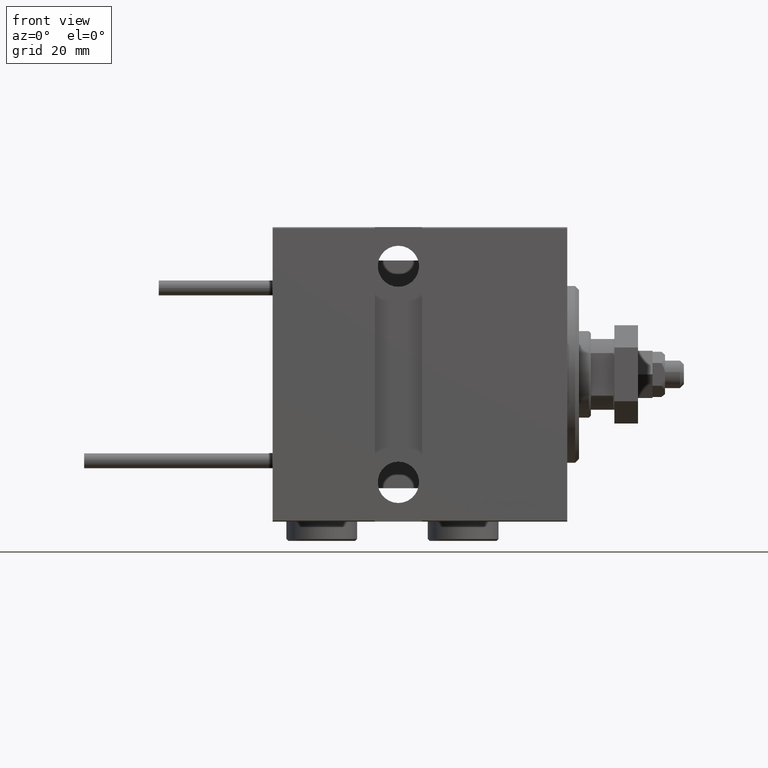
[diagram: clean part render]
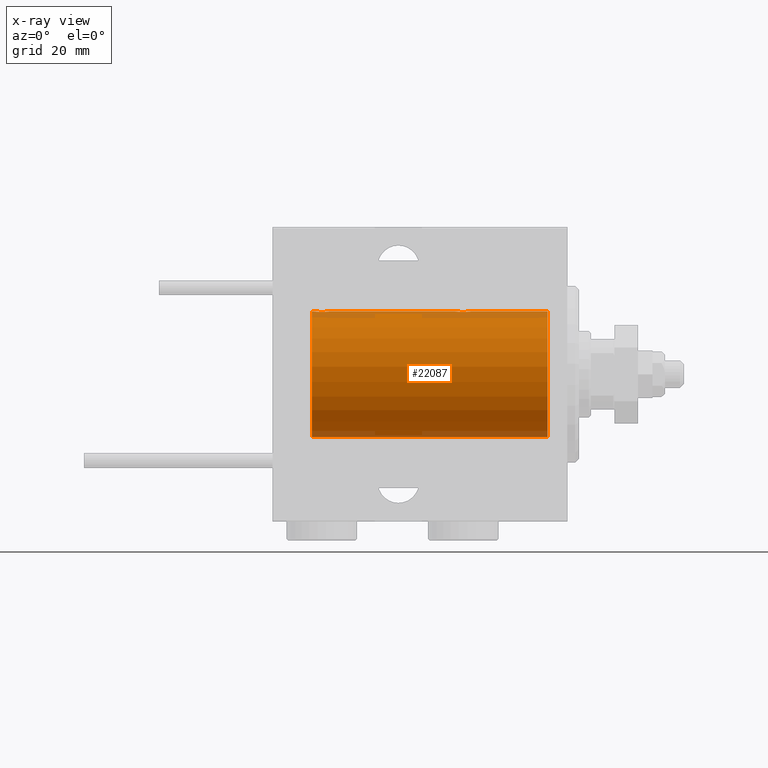
[diagram: x-ray — body ghosted, one internal face saturated and labeled with its STEP entity id]
A machine part, front view, then the same camera in x-ray: the body is ghosted and one INTERNAL B-rep face — a face not visible from any outside direction — is saturated and labeled: STEP entity #22087.
In plain terms, the highlighted cylindrical surface (partial cylindrical patch) has radius 16 mm, axis along (1, 0, -0).
Its self-contained STEP definition (entity closure, byte-faithful):
#285 = CARTESIAN_POINT ( 'NONE',  ( 64.23568098498259360, 1.002241074716276881, 15.96895041604535770 ) ) ;
#1955 = CARTESIAN_POINT ( 'NONE',  ( 65.00000000000000000, 0.000000000000000000, 16.00000000000000000 ) ) ;
#2053 = CARTESIAN_POINT ( 'NONE',  ( 27.02531756459403667, 1.947280337074160927, 15.88137861827786779 ) ) ;
#2315 = CARTESIAN_POINT ( 'NONE',  ( 25.49688752964961225, 1.735145127817741439, 15.90580292899658410 ) ) ;
#2574 = CARTESIAN_POINT ( 'NONE',  ( 24.51309075167874596, 0.2632563459770819736, 15.99834873924246459 ) ) ;
#3297 = FACE_OUTER_BOUND ( 'NONE', #6822, .T. ) ;
#3790 = CARTESIAN_POINT ( 'NONE',  ( 65.00000000000000000, 0.000000000000000000, 16.00000000000000000 ) ) ;
#3947 = EDGE_CURVE ( 'NONE', #47126, #34928, #13821, .T. ) ;
#4223 = ORIENTED_EDGE ( 'NONE', *, *, #9839, .T. ) ;
#4648 = CARTESIAN_POINT ( 'NONE',  ( 61.49688752964961935, 1.735145127817733002, 15.90580292899658410 ) ) ;
#5778 = DIRECTION ( 'NONE',  ( 0.000000000000000000, 0.000000000000000000, 1.000000000000000000 ) ) ;
#6048 = B_SPLINE_CURVE_WITH_KNOTS ( 'NONE', 3,
 ( #9318, #29362, #33734, #41466, #36863, #45331, #25754, #45081, #32755, #21900, #21393, #2053, #37096, #37606, #44835, #25260, #17772, #28863, #2315, #49447, #25005, #9566, #14172, #29876, #13164, #33494, #48697, #2574, #21142, #13415 ),
 .UNSPECIFIED., .F., .F.,
 ( 4, 2, 2, 2, 2, 2, 2, 2, 2, 2, 2, 2, 2, 2, 4 ),
 ( 1.745049934674283425E-18, 0.0003911894522871204737, 0.0007823789045742392126, 0.001173568356861357789, 0.001564757809148476691, 0.002347136713722706037, 0.003129515618296936034, 0.003520705070584051466, 0.003911894522871166464, 0.004303083975158282330, 0.004694273427445396461, 0.005085462879732512327, 0.005476652332019627326, 0.005867841784306743191, 0.006259031236593858190 ),
 .UNSPECIFIED. ) ;
#6822 = EDGE_LOOP ( 'NONE', ( #38570, #12224, #12279, #20953, #39590, #38373, #4223, #36091 ) ) ;
#7822 = EDGE_CURVE ( 'NONE', #23880, #19042, #34996, .T. ) ;
#8268 = CARTESIAN_POINT ( 'NONE',  ( 63.50659181559576183, 1.747750603376297951, 15.90457341008072056 ) ) ;
#8773 = CARTESIAN_POINT ( 'NONE',  ( 60.56430947073870641, 0.5198215460038694280, 15.99206840425679310 ) ) ;
#9294 = CARTESIAN_POINT ( 'NONE',  ( 65.00000000000000000, 0.000000000000000000, 16.00000000000000000 ) ) ;
#9318 = CARTESIAN_POINT ( 'NONE',  ( 28.49999999999999645, -1.207828523974853969E-15, 16.00000000000000000 ) ) ;
#9566 = CARTESIAN_POINT ( 'NONE',  ( 24.99262839687570903, 1.321075116345881595, 15.94564302722883298 ) ) ;
#9839 = EDGE_CURVE ( 'NONE', #45363, #23880, #23117, .T. ) ;
#10506 = CARTESIAN_POINT ( 'NONE',  ( 24.50000000000000000, -2.739635037742051899E-23, 16.00000000000000000 ) ) ;
#10766 = VERTEX_POINT ( 'NONE', #20648 ) ;
#10826 = EDGE_CURVE ( 'NONE', #26579, #45363, #6048, .T. ) ;
#11182 = AXIS2_PLACEMENT_3D ( 'NONE', #33039, #28907, #49490 ) ;
#12135 = CARTESIAN_POINT ( 'NONE',  ( 64.29713414748218270, 0.8874076679346717400, 15.97583181162460697 ) ) ;
#12224 = ORIENTED_EDGE ( 'NONE', *, *, #29689, .F. ) ;
#12279 = ORIENTED_EDGE ( 'NONE', *, *, #3947, .T. ) ;
#12635 = CARTESIAN_POINT ( 'NONE',  ( 61.28032342557722245, 1.590393755195991909, 15.92092783521423272 ) ) ;
#13164 = CARTESIAN_POINT ( 'NONE',  ( 24.70250071394960045, 0.8866640484200088990, 15.97587307151817448 ) ) ;
#13415 = CARTESIAN_POINT ( 'NONE',  ( 24.50000000000000000, -2.739635037742051899E-23, 16.00000000000000000 ) ) ;
#13460 = CARTESIAN_POINT ( 'NONE',  ( 65.00000000000000000, 1.959434878635765131E-15, -16.00000000000000000 ) ) ;
#13620 = AXIS2_PLACEMENT_3D ( 'NONE', #37807, #49387, #38327 ) ;
#13821 = LINE ( 'NONE', #1955, #27048 ) ;
#14172 = CARTESIAN_POINT ( 'NONE',  ( 24.90998471899876066, 1.220169175415113827, 15.95377581882983442 ) ) ;
#15985 = CARTESIAN_POINT ( 'NONE',  ( 62.37014691649500264, 2.000047931387129552, 15.87450182760079898 ) ) ;
#16251 = CARTESIAN_POINT ( 'NONE',  ( 64.48700524008410184, 0.2623312429553320002, 15.99836091803360105 ) ) ;
#17594 = EDGE_CURVE ( 'NONE', #34928, #10766, #31781, .T. ) ;
#17772 = CARTESIAN_POINT ( 'NONE',  ( 25.85613031966986952, 1.898058445420883311, 15.88709929148890510 ) ) ;
#18324 = CARTESIAN_POINT ( 'NONE',  ( 65.00000000000000000, 1.959434878635765131E-15, -16.00000000000000000 ) ) ;
#18758 = VERTEX_POINT ( 'NONE', #13460 ) ;
#18837 = LINE ( 'NONE', #18324, #40602 ) ;
#19042 = VERTEX_POINT ( 'NONE', #46047 ) ;
#19508 = DIRECTION ( 'NONE',  ( -1.000000000000000000, -0.000000000000000000, -0.000000000000000000 ) ) ;
#19614 = CARTESIAN_POINT ( 'NONE',  ( 60.50000000000001421, 0.1305944228192293111, 16.00000000000000000 ) ) ;
#20113 = CARTESIAN_POINT ( 'NONE',  ( 61.61382242942730159, 1.797743958659246966, 15.89876304682111652 ) ) ;
#20648 = CARTESIAN_POINT ( 'NONE',  ( 60.50000000000000711, -2.739595594696790848E-23, 16.00000000000000000 ) ) ;
#20953 = ORIENTED_EDGE ( 'NONE', *, *, #17594, .T. ) ;
#21142 = CARTESIAN_POINT ( 'NONE',  ( 24.49999999999999289, 0.1305944228192297274, 15.99999999999999645 ) ) ;
#21160 = CIRCLE ( 'NONE', #29376, 16.00000000000000000 ) ;
#21393 = CARTESIAN_POINT ( 'NONE',  ( 27.50659181559580446, 1.747750603376297729, 15.90457341008072056 ) ) ;
#21900 = CARTESIAN_POINT ( 'NONE',  ( 27.72956111739783580, 1.598790766515148620, 15.92099550861380131 ) ) ;
#22087 = ADVANCED_FACE ( 'NONE', ( #3297 ), #49907, .F. ) ;
#22257 = DIRECTION ( 'NONE',  ( -1.000000000000000000, 0.000000000000000000, 0.000000000000000000 ) ) ;
#23117 = LINE ( 'NONE', #3790, #48327 ) ;
#23466 = CARTESIAN_POINT ( 'NONE',  ( 64.00610712468245822, 1.322357532253809476, 15.94553003295877680 ) ) ;
#23734 = CARTESIAN_POINT ( 'NONE',  ( 61.98086902289887945, 1.935876924222067252, 15.88247600692093187 ) ) ;
#23880 = VERTEX_POINT ( 'NONE', #43427 ) ;
#23982 = CARTESIAN_POINT ( 'NONE',  ( 60.90998471899877131, 1.220169175415108942, 15.95377581882983797 ) ) ;
#24982 = LINE ( 'NONE', #9294, #25631 ) ;
#25005 = CARTESIAN_POINT ( 'NONE',  ( 25.17924175171067702, 1.507649250492130388, 15.92908549642226745 ) ) ;
#25260 = CARTESIAN_POINT ( 'NONE',  ( 25.98086902289887234, 1.935876924222074358, 15.88247600692093187 ) ) ;
#25631 = VECTOR ( 'NONE', #40692, 1000.000000000000000 ) ;
#25754 = CARTESIAN_POINT ( 'NONE',  ( 28.23568098498261492, 1.002241074716280655, 15.96895041604536480 ) ) ;
#26579 = VERTEX_POINT ( 'NONE', #34455 ) ;
#26589 = CARTESIAN_POINT ( 'NONE',  ( 64.49999999999998579, 3.415560487804343463E-15, 16.00000000000000000 ) ) ;
#27048 = VECTOR ( 'NONE', #30041, 1000.000000000000000 ) ;
#27581 = CARTESIAN_POINT ( 'NONE',  ( 63.02531756459401890, 1.947280337074155376, 15.88137861827787489 ) ) ;
#28088 = CARTESIAN_POINT ( 'NONE',  ( 62.23748416992101085, 1.987008272775779627, 15.87616016863256618 ) ) ;
#28330 = CARTESIAN_POINT ( 'NONE',  ( 60.51309075167873885, 0.2632563459770802528, 15.99834873924246104 ) ) ;
#28712 = CARTESIAN_POINT ( 'NONE',  ( 65.00000000000000000, 0.000000000000000000, 0.000000000000000000 ) ) ;
#28863 = CARTESIAN_POINT ( 'NONE',  ( 25.61382242942729803, 1.797743958659254515, 15.89876304682112007 ) ) ;
#28907 = DIRECTION ( 'NONE',  ( -1.000000000000000000, 0.000000000000000000, 0.000000000000000000 ) ) ;
#29362 = CARTESIAN_POINT ( 'NONE',  ( 28.49999999999998579, 0.1322838750249257511, 16.00000000000000000 ) ) ;
#29376 = AXIS2_PLACEMENT_3D ( 'NONE', #28712, #22257, #5778 ) ;
#29689 = EDGE_CURVE ( 'NONE', #47126, #18758, #21160, .T. ) ;
#29876 = CARTESIAN_POINT ( 'NONE',  ( 24.76517329325045225, 1.003662148334361959, 15.96885838080210007 ) ) ;
#30041 = DIRECTION ( 'NONE',  ( -1.000000000000000000, -0.000000000000000000, -0.000000000000000000 ) ) ;
#30171 = DIRECTION ( 'NONE',  ( -1.000000000000000000, -0.000000000000000000, -0.000000000000000000 ) ) ;
#31704 = CARTESIAN_POINT ( 'NONE',  ( 64.49999999999997158, 0.1322838750249256956, 16.00000000000000000 ) ) ;
#31781 = B_SPLINE_CURVE_WITH_KNOTS ( 'NONE', 3,
 ( #47426, #31704, #16251, #46921, #47927, #12135, #285, #39941, #23466, #39173, #8268, #27581, #35816, #15985, #28088, #23734, #32211, #20113, #4648, #12635, #44061, #35065, #23982, #36080, #39683, #43046, #8773, #28330, #19614, #31967 ),
 .UNSPECIFIED., .F., .F.,
 ( 4, 2, 2, 2, 2, 2, 2, 2, 2, 2, 2, 2, 2, 2, 4 ),
 ( 3.318791181215196379E-18, 0.0003911894522871183053, 0.0007823789045742333579, 0.001173568356861347814, 0.001564757809148462596, 0.002347136713722691292, 0.003129515618296919988, 0.003520705070584034552, 0.003911894522871149117, 0.004303083975158263248, 0.004694273427445377379, 0.005085462879732491510, 0.005476652332019605642, 0.005867841784306719773, 0.006259031236593833904 ),
 .UNSPECIFIED. ) ;
#31967 = CARTESIAN_POINT ( 'NONE',  ( 60.50000000000000711, -2.739595594696790848E-23, 16.00000000000000000 ) ) ;
#32211 = CARTESIAN_POINT ( 'NONE',  ( 61.85613031966985886, 1.898058445420874651, 15.88709929148890687 ) ) ;
#32755 = CARTESIAN_POINT ( 'NONE',  ( 28.00610712468246177, 1.322357532253821910, 15.94553003295878391 ) ) ;
#33039 = CARTESIAN_POINT ( 'NONE',  ( 4.999999999999997335, 0.000000000000000000, 0.000000000000000000 ) ) ;
#33494 = CARTESIAN_POINT ( 'NONE',  ( 24.60216273501104567, 0.6445079780200539954, 15.98747331501412461 ) ) ;
#33734 = CARTESIAN_POINT ( 'NONE',  ( 28.48700524008413382, 0.2623312429553315561, 15.99836091803360105 ) ) ;
#34455 = CARTESIAN_POINT ( 'NONE',  ( 28.49999999999999645, -1.207828523974853969E-15, 16.00000000000000000 ) ) ;
#34928 = VERTEX_POINT ( 'NONE', #26589 ) ;
#34996 = CIRCLE ( 'NONE', #11182, 16.00000000000000000 ) ;
#35065 = CARTESIAN_POINT ( 'NONE',  ( 60.99262839687573745, 1.321075116345875378, 15.94564302722883653 ) ) ;
#35816 = CARTESIAN_POINT ( 'NONE',  ( 62.76191462762252371, 1.999903730784143630, 15.87451999516785506 ) ) ;
#36080 = CARTESIAN_POINT ( 'NONE',  ( 60.76517329325045580, 1.003662148334357296, 15.96885838080210362 ) ) ;
#36091 = ORIENTED_EDGE ( 'NONE', *, *, #7822, .T. ) ;
#36863 = CARTESIAN_POINT ( 'NONE',  ( 28.39758870055591444, 0.6452446332038146437, 15.98744362947834574 ) ) ;
#37096 = CARTESIAN_POINT ( 'NONE',  ( 26.76191462762254858, 1.999903730784154066, 15.87451999516785861 ) ) ;
#37606 = CARTESIAN_POINT ( 'NONE',  ( 26.37014691649501685, 2.000047931387139322, 15.87450182760079187 ) ) ;
#37807 = CARTESIAN_POINT ( 'NONE',  ( 65.00000000000000000, 0.000000000000000000, 0.000000000000000000 ) ) ;
#38327 = DIRECTION ( 'NONE',  ( 0.000000000000000000, 0.000000000000000000, 1.000000000000000000 ) ) ;
#38373 = ORIENTED_EDGE ( 'NONE', *, *, #10826, .T. ) ;
#38570 = ORIENTED_EDGE ( 'NONE', *, *, #50448, .F. ) ;
#39173 = CARTESIAN_POINT ( 'NONE',  ( 63.72956111739784291, 1.598790766515136408, 15.92099550861381019 ) ) ;
#39590 = ORIENTED_EDGE ( 'NONE', *, *, #42774, .T. ) ;
#39683 = CARTESIAN_POINT ( 'NONE',  ( 60.70250071394959690, 0.8866640484200044581, 15.97587307151817804 ) ) ;
#39941 = CARTESIAN_POINT ( 'NONE',  ( 64.09051504852095604, 1.219564485341761317, 15.95382484008322344 ) ) ;
#40602 = VECTOR ( 'NONE', #30171, 1000.000000000000000 ) ;
#40692 = DIRECTION ( 'NONE',  ( -1.000000000000000000, -0.000000000000000000, -0.000000000000000000 ) ) ;
#41466 = CARTESIAN_POINT ( 'NONE',  ( 28.43611326682063378, 0.5181437283162068086, 15.99211983514074298 ) ) ;
#41472 = CARTESIAN_POINT ( 'NONE',  ( 65.00000000000000000, 0.000000000000000000, 16.00000000000000000 ) ) ;
#42774 = EDGE_CURVE ( 'NONE', #10766, #26579, #24982, .T. ) ;
#43046 = CARTESIAN_POINT ( 'NONE',  ( 60.60216273501104212, 0.6445079780200505537, 15.98747331501412461 ) ) ;
#43427 = CARTESIAN_POINT ( 'NONE',  ( 4.999999999999997335, 0.000000000000000000, 16.00000000000000000 ) ) ;
#44061 = CARTESIAN_POINT ( 'NONE',  ( 61.17924175171067702, 1.507649250492122839, 15.92908549642226745 ) ) ;
#44835 = CARTESIAN_POINT ( 'NONE',  ( 26.23748416992101085, 1.987008272775788731, 15.87616016863256618 ) ) ;
#45081 = CARTESIAN_POINT ( 'NONE',  ( 28.09051504852099512, 1.219564485341767091, 15.95382484008323409 ) ) ;
#45331 = CARTESIAN_POINT ( 'NONE',  ( 28.29713414748220046, 0.8874076679346754037, 15.97583181162460697 ) ) ;
#45363 = VERTEX_POINT ( 'NONE', #10506 ) ;
#46047 = CARTESIAN_POINT ( 'NONE',  ( 4.999999999999997335, 1.959434878635765131E-15, -16.00000000000000000 ) ) ;
#46921 = CARTESIAN_POINT ( 'NONE',  ( 64.43611326682059826, 0.5181437283162059204, 15.99211983514074653 ) ) ;
#47126 = VERTEX_POINT ( 'NONE', #41472 ) ;
#47426 = CARTESIAN_POINT ( 'NONE',  ( 64.49999999999998579, 3.415560487804343463E-15, 16.00000000000000000 ) ) ;
#47927 = CARTESIAN_POINT ( 'NONE',  ( 64.39758870055591444, 0.6452446332038123122, 15.98744362947834574 ) ) ;
#48327 = VECTOR ( 'NONE', #19508, 1000.000000000000000 ) ;
#48697 = CARTESIAN_POINT ( 'NONE',  ( 24.56430947073869930, 0.5198215460038717595, 15.99206840425678955 ) ) ;
#49387 = DIRECTION ( 'NONE',  ( -1.000000000000000000, -0.000000000000000000, -0.000000000000000000 ) ) ;
#49447 = CARTESIAN_POINT ( 'NONE',  ( 25.28032342557723311, 1.590393755196000347, 15.92092783521424337 ) ) ;
#49490 = DIRECTION ( 'NONE',  ( 0.000000000000000000, 0.000000000000000000, 1.000000000000000000 ) ) ;
#49907 = CYLINDRICAL_SURFACE ( 'NONE', #13620, 16.00000000000000000 ) ;
#50448 = EDGE_CURVE ( 'NONE', #18758, #19042, #18837, .T. ) ;